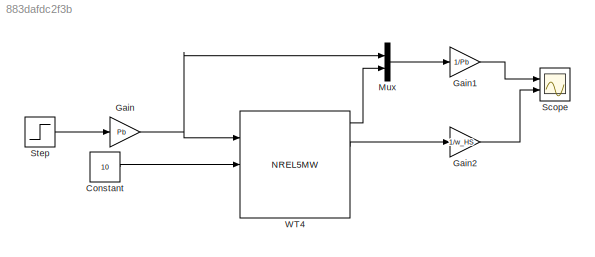
MODEL slx_883dafdc2f3b
KIND model
CONFIG AbsTol = auto
CONFIG EnableMultiTasking = off
CONFIG FixedStep = auto
CONFIG MaxStep = auto
CONFIG MinStep = auto
CONFIG RelTol = 1e-3
CONFIG SampleTimeConstraint = Unconstrained
CONFIG Solver = VariableStepAuto
CONFIG SolverName = VariableStepAuto
CONFIG StartTime = 0.0
CONFIG StopTime = 100
BLOCK [Constant] Constant
  Value = 10
BLOCK [Gain] Gain
  Gain = Pb
BLOCK [Gain] Gain1
  Gain = 1/Pb
BLOCK [Gain] Gain2
  Gain = 1/w_HS
BLOCK [Mux] Mux
  DisplayOption = bar
  Inputs = 2
  Ports = [2, 1]
BLOCK [Scope] Scope
  Floating = off
  NumInputPorts = 2
  Ports = [2]
  ScopeSpecificationString = Simulink.scopes.TimeScopeBlockCfg('CurrentConfiguration', extmgr.ConfigurationSet(extmgr.Configuration('Core','General UI',true),extmgr.Configuration('Core','Source UI',true),extmgr.Configuration('Sources','WiredSimulink',true),extmgr.Configuration('Visuals','Time Domain',true,'SerializedDisplays',{struct('MinYLimReal','-0.125','MaxYLimReal','1.125','YLabelReal','','MinYLimMag','0.00000','MaxYLimM...<+2083ch>
BLOCK [Step] Step
  SampleTime = 0
BLOCK [Reference] WT4  REF=libturbines/NREL5MW  (lib defined in mdl_90190a676d21, slx_8b4198d95370)
  NameLocation = top
  Ports = [3, 8]
  SourceBlock = libturbines/NREL5MW
  SourceType = Wind Turbine
  UserDataPersistent = on
LINE Constant:1 -> WT4:2
LINE Gain1:1 -> Scope:1
LINE Gain2:1 -> Scope:2
NET Gain:1 -> Mux:1, WT4:1
LINE Mux:1 -> Gain1:1
LINE Step:1 -> Gain:1
LINE WT4:1 -> Mux:2
LINE WT4:3 -> Gain2:1
note: NET lines group one-source signal fan-out (src -> all destinations, sorted); 1:1 wires keep LINE
